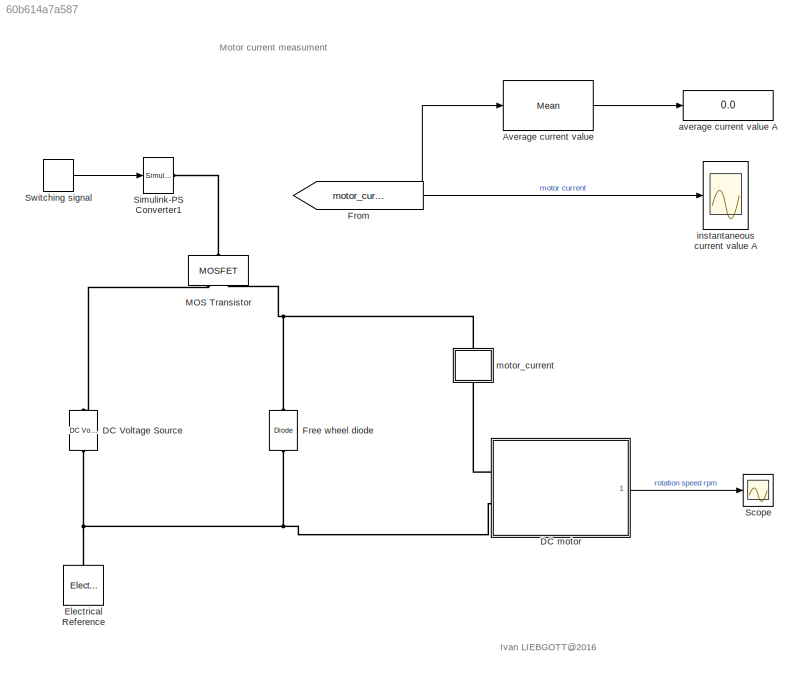
MODEL slx_60b614a7a587
KIND model
CONFIG AbsTol = auto
CONFIG FixedStep = auto
CONFIG MaxStep = auto
CONFIG MinStep = auto
CONFIG RelTol = 1e-3
CONFIG SampleTimeConstraint = Unconstrained
CONFIG Solver = ode15s
CONFIG SolverMode = Auto
CONFIG SolverName = ode15s
CONFIG StartTime = 0.0
CONFIG StopTime = 0.1
BLOCK [Reference] Average current value  REF=powerlib_meascontrol/Measurements/Mean
  Ports = [1, 1]
  SourceBlock = powerlib_meascontrol/Measurements/Mean
  SourceType = Mean
BLOCK [Reference] DC Voltage Source  REF=fl_lib/Electrical/Electrical Sources/DC Voltage Source
  Ports = [0, 0, 0, 0, 0, 1, 1]
  SourceBlock = fl_lib/Electrical/Electrical Sources/DC Voltage Source
  SourceType = DC Voltage Source
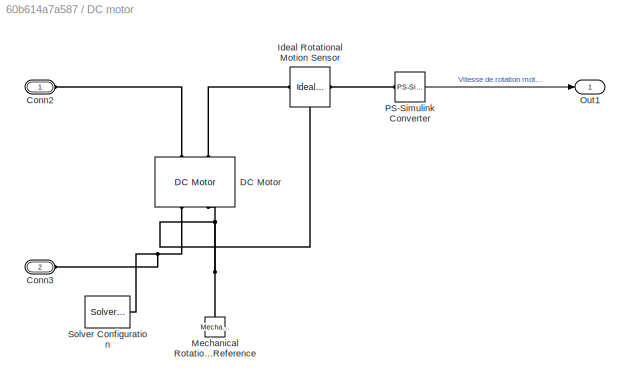
BLOCK [SubSystem] DC motor
  Ports = [0, 1, 0, 0, 0, 2]
  RequestExecContextInheritance = off
  Variant = off
BLOCK [PMIOPort] DC motor/Conn2
  Port = 1
  Side = Left
BLOCK [PMIOPort] DC motor/Conn3
  Port = 2
  Side = Left
BLOCK [Reference] DC motor/DC Motor  REF=elec_lib/Actuators & Drivers/Rotational Actuators/DC Motor
  Ports = [0, 0, 0, 0, 0, 2, 2]
  SourceBlock = elec_lib/Actuators & Drivers/Rotational Actuators/DC Motor
  SourceType = DC Motor
BLOCK [Reference] DC motor/Ideal Rotational Motion Sensor  REF=fl_lib/Mechanical/Mechanical Sensors/Ideal Rotational
Motion Sensor
  Ports = [0, 0, 0, 0, 0, 1, 3]
  SourceBlock = fl_lib/Mechanical/Mechanical Sensors/Ideal Rotational\nMotion Sensor
  SourceType = Ideal Rotational\nMotion Sensor
BLOCK [Reference] DC motor/Mechanical Rotational Reference  REF=fl_lib/Mechanical/Rotational Elements/Mechanical
Rotational Reference
  Ports = [0, 0, 0, 0, 0, 1]
  SourceBlock = fl_lib/Mechanical/Rotational Elements/Mechanical\nRotational Reference
  SourceType = Mechanical\nRotational Reference
BLOCK [Outport] DC motor/Out1
  IconDisplay = Port number
BLOCK [Reference] DC motor/PS-Simulink Converter  REF=nesl_utility/PS-Simulink
Converter
  Ports = [0, 1, 0, 0, 0, 1]
  SourceBlock = nesl_utility/PS-Simulink\nConverter
  SourceType = PS-Simulink\nConverter
BLOCK [Reference] DC motor/Solver Configuration  REF=nesl_utility/Solver
Configuration
  Ports = [0, 0, 0, 0, 0, 0, 1]
  SourceBlock = nesl_utility/Solver\nConfiguration
  SourceType = Solver\nConfiguration
BLOCK [Reference] Electrical Reference  REF=fl_lib/Electrical/Electrical Elements/Electrical Reference
  Ports = [0, 0, 0, 0, 0, 1]
  SourceBlock = fl_lib/Electrical/Electrical Elements/Electrical Reference
  SourceType = Electrical Reference
BLOCK [Reference] Free wheel diode  REF=fl_lib/Electrical/Electrical Elements/Diode
  Ports = [0, 0, 0, 0, 0, 1, 1]
  SourceBlock = fl_lib/Electrical/Electrical Elements/Diode
  SourceType = Diode
BLOCK [From] From
  GotoTag = motor_current
  TagVisibility = global
BLOCK [Reference] MOS Transistor   REF=pe_lib/Semiconductors/Fundamental
Components/MOSFET
  Ports = [0, 0, 0, 0, 0, 1, 2]
  SourceBlock = pe_lib/Semiconductors/Fundamental\nComponents/MOSFET
  SourceType = MOSFET
BLOCK [Scope] Scope
  Ports = [1]
  ScopeSpecificationString = C++SS(StrPVP('Location','[-1537, -303, -852, 378]'),StrPVP('Open','off'),MxPVP('AxesTitles',24,'struct(''axes1'',''%<SignalLabel>'')'),MxPVP('ScopeGraphics',28,'struct(''FigureColor'',''[0.501960784313725 0.501960784313725 0.501960784313725]'',''AxesColor'',''[1 1 1]'',''AxesTickColor'',''[0 0 0]'',''LineColors'',''[0 0 1;1 0 1;0 1 1;1 0 0;0 1 0;0 0 1]'',''LineStyles'',''-|-|-|-|-|-'',''LineWidths...<+323ch>
BLOCK [Reference] Simulink-PS Converter1  REF=nesl_utility/Simulink-PS
Converter
  Ports = [1, 0, 0, 0, 0, 0, 1]
  SourceBlock = nesl_utility/Simulink-PS\nConverter
  SourceType = Simulink-PS\nConverter
BLOCK [DiscretePulseGenerator] Switching signal 
  Period = 0.01
  Ports = [0, 1]
  PulseType = Time based
  PulseWidth = 20
BLOCK [Display] average current value A
  Decimation = 1
  Ports = [1]
BLOCK [Scope] instantaneous current value A
  Ports = [1]
  ScopeSpecificationString = Simulink.scopes.TimeScopeBlockCfg('CurrentConfiguration', extmgr.ConfigurationSet(extmgr.Configuration('Core','General UI',true,'FigureColor',[1 1 1]),extmgr.Configuration('Core','Source UI',true),extmgr.Configuration('Sources','WiredSimulink',true,'DataLoggingVariableName','ScopeData1','DataLoggingSaveFormat','StructureWithTime','DataLoggingDecimation','1','DataLoggingDecimateData',true),extmgr.C...<+2831ch>
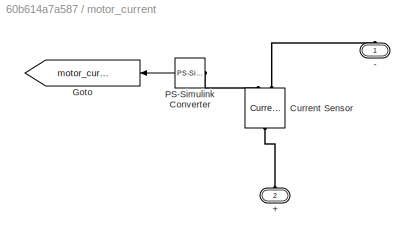
BLOCK [SubSystem] motor_current
  Ports = [0, 0, 0, 0, 0, 1, 1]
  RequestExecContextInheritance = off
  Variant = off
BLOCK [PMIOPort] motor_current/+
  Port = 2
  Side = Left
BLOCK [PMIOPort] motor_current/-
  Port = 1
  Side = Right
BLOCK [Reference] motor_current/Current Sensor  REF=fl_lib/Electrical/Electrical Sensors/Current Sensor
  Ports = [0, 0, 0, 0, 0, 1, 2]
  SourceBlock = fl_lib/Electrical/Electrical Sensors/Current Sensor
  SourceType = Current Sensor
BLOCK [Goto] motor_current/Goto
  GotoTag = motor_current
  TagVisibility = global
BLOCK [Reference] motor_current/PS-Simulink Converter  REF=nesl_utility/PS-Simulink
Converter
  Ports = [0, 1, 0, 0, 0, 1]
  SourceBlock = nesl_utility/PS-Simulink\nConverter
  SourceType = PS-Simulink\nConverter
ANNOTATION (root): Ivan LIEBGOTT@2016
ANNOTATION (root): Motor current measument
LINE Average current value:1 -> average current value A:1
LINE DC motor/PS-Simulink Converter:1 -> DC motor/Out1:1
LINE DC motor:1 -> Scope:1
NET From:1 -> Average current value:1, instantaneous current value A:1
LINE Switching signal :1 -> Simulink-PS Converter1:1
LINE motor_current/PS-Simulink Converter:1 -> motor_current/Goto:1
PLINE DC Voltage Source:LConn1 -- MOS Transistor :RConn1
PNET net1: DC Voltage Source:RConn1 -- DC motor:LConn2 -- Electrical Reference:LConn1 -- Free wheel diode:LConn1
PLINE DC motor/Conn2:RConn1 -- DC motor/DC Motor:LConn1
PNET net2: DC motor/Conn3:RConn1 -- DC motor/DC Motor:RConn1 -- DC motor/Solver Configuration:RConn1
PLINE DC motor/DC Motor:LConn2 -- DC motor/Ideal Rotational Motion Sensor:LConn1
PNET net3: DC motor/DC Motor:RConn2 -- DC motor/Ideal Rotational Motion Sensor:RConn1 -- DC motor/Mechanical Rotational Reference:LConn1
PLINE DC motor/Ideal Rotational Motion Sensor:RConn2 -- DC motor/PS-Simulink Converter:LConn1
PLINE DC motor:LConn1 -- motor_current:RConn1
PNET net4: Free wheel diode:RConn1 -- MOS Transistor :RConn2 -- motor_current:LConn1
PLINE MOS Transistor :LConn1 -- Simulink-PS Converter1:RConn1
PLINE motor_current/+:RConn1 -- motor_current/Current Sensor:LConn1
PLINE motor_current/-:RConn1 -- motor_current/Current Sensor:RConn2
PLINE motor_current/Current Sensor:RConn1 -- motor_current/PS-Simulink Converter:LConn1
note: NET lines group one-source signal fan-out (src -> all destinations, sorted); 1:1 wires keep LINE; PNET lines group multi-terminal physical nets as a canonical sorted terminal list (undirected conserving connections); 2-terminal nets keep the pairwise PLINE form
